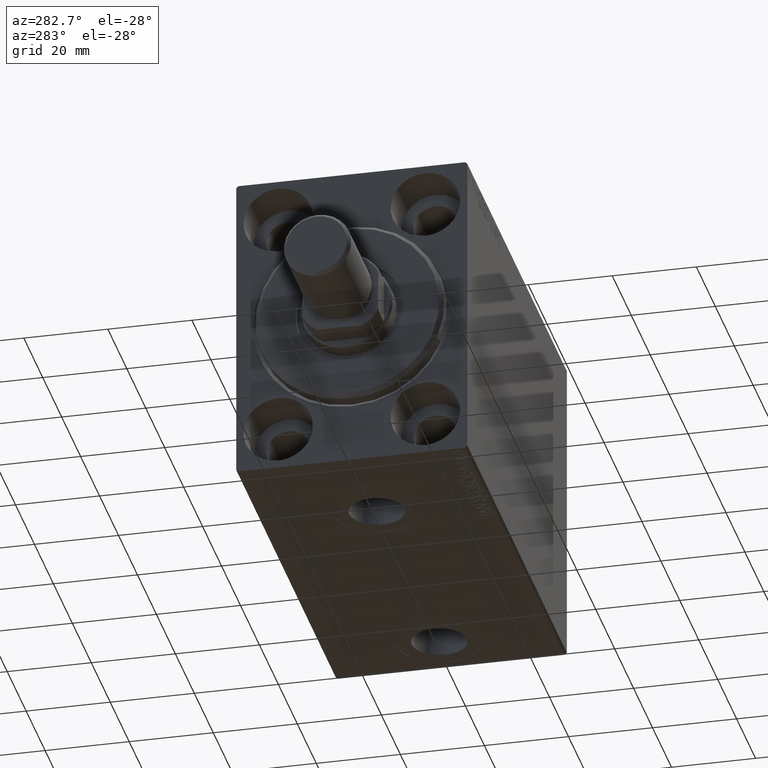
[diagram: clean part render]
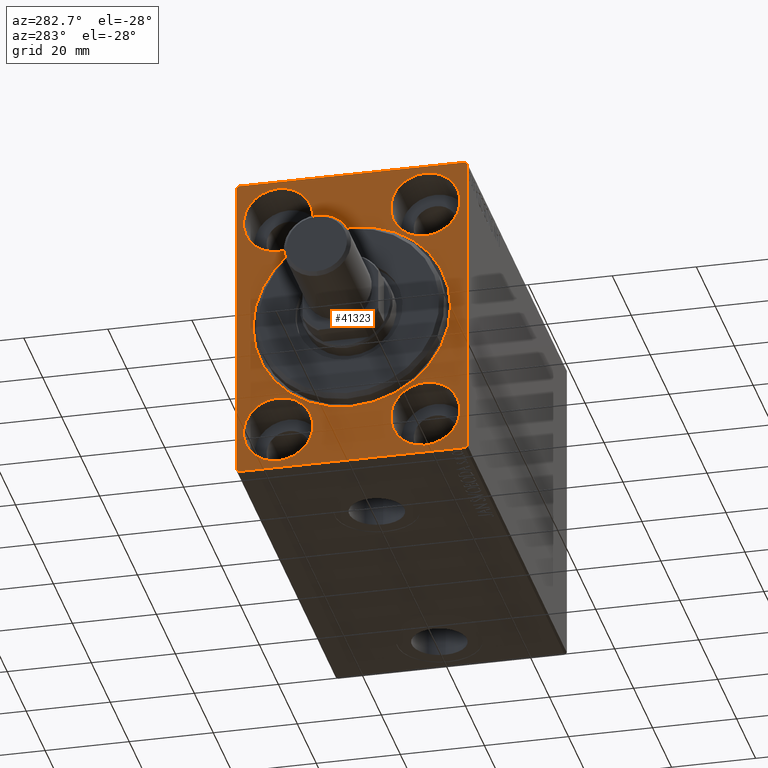
[diagram: same view with one face highlighted and labeled with its STEP entity id]
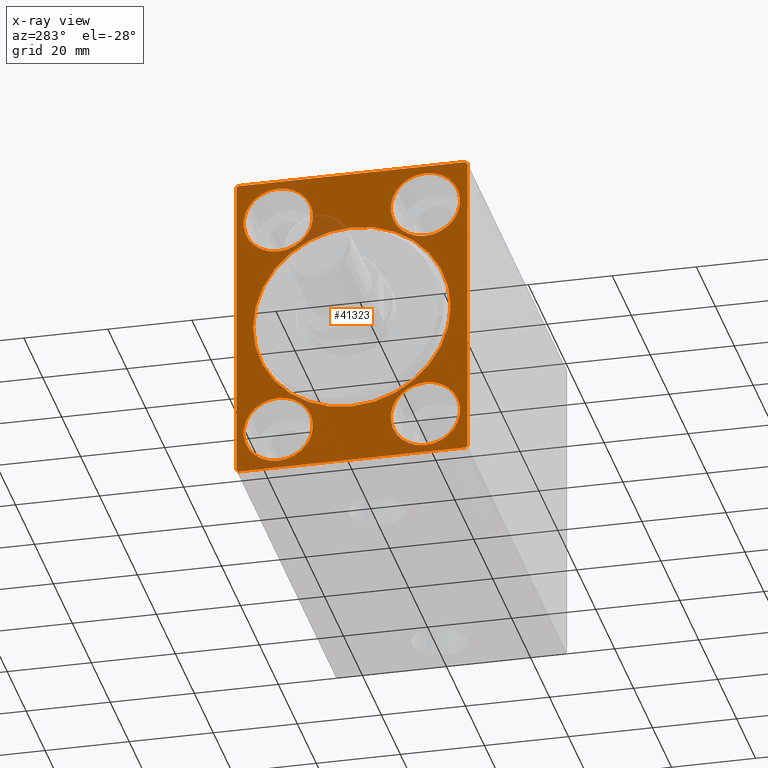
[diagram: x-ray of the same camera — body ghosted, the highlighted face saturated]
A machine part, auxiliary view. The second image highlights one B-rep face of the part: STEP entity #41323.
The next image is the same camera in x-ray: the body ghosted, the highlighted face saturated — about 3% of this face is hidden behind the body in this view.
In plain terms, the highlighted planar face has unit normal (1, 0, 0).
Its self-contained STEP definition (entity closure, byte-faithful):
#209 = CARTESIAN_POINT ( 'NONE',  ( 0.000000000000000000, 17.50000000000000355, 19.25000000000000000 ) ) ;
#542 = ORIENTED_EDGE ( 'NONE', *, *, #19928, .T. ) ;
#1023 = VERTEX_POINT ( 'NONE', #7297 ) ;
#1029 = DIRECTION ( 'NONE',  ( 0.000000000000000000, 0.000000000000000000, -1.000000000000000000 ) ) ;
#1526 = CIRCLE ( 'NONE', #39529, 8.250000000000000000 ) ;
#1567 = FACE_BOUND ( 'NONE', #27237, .T. ) ;
#1699 = CARTESIAN_POINT ( 'NONE',  ( 0.000000000000000000, 26.99999999999998934, -37.50000000000000000 ) ) ;
#1703 = EDGE_CURVE ( 'NONE', #31374, #20056, #21033, .T. ) ;
#2851 = ORIENTED_EDGE ( 'NONE', *, *, #42606, .F. ) ;
#2890 = CARTESIAN_POINT ( 'NONE',  ( 0.000000000000000000, 27.49999999999999645, 37.00000000000001421 ) ) ;
#3001 = CARTESIAN_POINT ( 'NONE',  ( 0.000000000000000000, -17.50000000000000355, -27.50000000000000355 ) ) ;
#3006 = CARTESIAN_POINT ( 'NONE',  ( 0.000000000000000000, 17.50000000000000355, 35.74999999999999289 ) ) ;
#3254 = DIRECTION ( 'NONE',  ( 0.000000000000000000, 0.000000000000000000, 1.000000000000000000 ) ) ;
#3624 = CARTESIAN_POINT ( 'NONE',  ( 0.000000000000000000, -27.00000000000001776, -37.50000000000000000 ) ) ;
#3910 = VERTEX_POINT ( 'NONE', #9694 ) ;
#4159 = DIRECTION ( 'NONE',  ( -1.000000000000000000, 0.000000000000000000, 0.000000000000000000 ) ) ;
#4167 = CARTESIAN_POINT ( 'NONE',  ( 0.000000000000000000, 27.49999999999999645, 37.50000000000000711 ) ) ;
#4375 = VERTEX_POINT ( 'NONE', #19719 ) ;
#4897 = CIRCLE ( 'NONE', #42919, 8.249999999999992895 ) ;
#4964 = AXIS2_PLACEMENT_3D ( 'NONE', #14630, #18457, #15074 ) ;
#5509 = ORIENTED_EDGE ( 'NONE', *, *, #8668, .F. ) ;
#6898 = ORIENTED_EDGE ( 'NONE', *, *, #20541, .F. ) ;
#6967 = ORIENTED_EDGE ( 'NONE', *, *, #16900, .T. ) ;
#7055 = CARTESIAN_POINT ( 'NONE',  ( 0.000000000000000000, 17.49999999999999645, -19.25000000000000355 ) ) ;
#7297 = CARTESIAN_POINT ( 'NONE',  ( 0.000000000000000000, 0.000000000000000000, 23.50000000000001776 ) ) ;
#7353 = CARTESIAN_POINT ( 'NONE',  ( 0.000000000000000000, -27.50000000000000355, 37.00000000000000000 ) ) ;
#7979 = AXIS2_PLACEMENT_3D ( 'NONE', #14539, #18357, #1029 ) ;
#8501 = ORIENTED_EDGE ( 'NONE', *, *, #1703, .F. ) ;
#8668 = EDGE_CURVE ( 'NONE', #15597, #4375, #14895, .T. ) ;
#9221 = CARTESIAN_POINT ( 'NONE',  ( 0.000000000000000000, -27.00000000000000355, 37.50000000000000000 ) ) ;
#9694 = CARTESIAN_POINT ( 'NONE',  ( 0.000000000000000000, 2.877919977996282293E-15, -23.50000000000001776 ) ) ;
#9858 = CARTESIAN_POINT ( 'NONE',  ( 0.000000000000000000, 17.49999999999999645, -35.75000000000000711 ) ) ;
#10197 = VECTOR ( 'NONE', #23009, 1000.000000000000000 ) ;
#10802 = CARTESIAN_POINT ( 'NONE',  ( 0.000000000000000000, 17.50000000000000355, 27.49999999999999645 ) ) ;
#10906 = DIRECTION ( 'NONE',  ( 0.000000000000000000, 0.000000000000000000, -1.000000000000000000 ) ) ;
#11452 = LINE ( 'NONE', #28951, #17376 ) ;
#11540 = EDGE_CURVE ( 'NONE', #23853, #40978, #33865, .T. ) ;
#11915 = FACE_BOUND ( 'NONE', #40598, .T. ) ;
#11938 = VERTEX_POINT ( 'NONE', #14418 ) ;
#12124 = DIRECTION ( 'NONE',  ( -1.000000000000000000, 0.000000000000000000, 0.000000000000000000 ) ) ;
#12143 = PLANE ( 'NONE',  #4964 ) ;
#12199 = CARTESIAN_POINT ( 'NONE',  ( 0.000000000000000000, -17.50000000000000355, -35.75000000000000711 ) ) ;
#12455 = CARTESIAN_POINT ( 'NONE',  ( 0.000000000000000000, -27.00000000000001776, -37.50000000000000000 ) ) ;
#12758 = EDGE_LOOP ( 'NONE', ( #38115, #12971 ) ) ;
#12971 = ORIENTED_EDGE ( 'NONE', *, *, #39194, .T. ) ;
#13052 = AXIS2_PLACEMENT_3D ( 'NONE', #3001, #43655, #26594 ) ;
#13342 = DIRECTION ( 'NONE',  ( 0.000000000000000000, 0.000000000000000000, 1.000000000000000000 ) ) ;
#13727 = DIRECTION ( 'NONE',  ( 0.000000000000000000, 0.000000000000000000, 1.000000000000000000 ) ) ;
#14106 = VECTOR ( 'NONE', #25871, 1000.000000000000000 ) ;
#14274 = CARTESIAN_POINT ( 'NONE',  ( 0.000000000000000000, 27.50000000000000355, -36.99999999999998579 ) ) ;
#14418 = CARTESIAN_POINT ( 'NONE',  ( 0.000000000000000000, 27.50000000000000355, -36.99999999999998579 ) ) ;
#14445 = DIRECTION ( 'NONE',  ( 0.000000000000000000, 0.000000000000000000, 1.000000000000000000 ) ) ;
#14539 = CARTESIAN_POINT ( 'NONE',  ( 0.000000000000000000, 0.000000000000000000, 0.000000000000000000 ) ) ;
#14544 = DIRECTION ( 'NONE',  ( -0.000000000000000000, 0.7071067811865524577, -0.7071067811865426878 ) ) ;
#14630 = CARTESIAN_POINT ( 'NONE',  ( 0.000000000000000000, 0.000000000000000000, 0.000000000000000000 ) ) ;
#14760 = CARTESIAN_POINT ( 'NONE',  ( 0.000000000000000000, 26.99999999999999645, 37.50000000000000711 ) ) ;
#14766 = EDGE_CURVE ( 'NONE', #1023, #3910, #18046, .T. ) ;
#14809 = ORIENTED_EDGE ( 'NONE', *, *, #38778, .F. ) ;
#14857 = FACE_BOUND ( 'NONE', #12758, .T. ) ;
#14895 = LINE ( 'NONE', #22076, #14106 ) ;
#15074 = DIRECTION ( 'NONE',  ( 0.000000000000000000, 0.000000000000000000, -1.000000000000000000 ) ) ;
#15216 = EDGE_CURVE ( 'NONE', #40978, #23853, #1526, .T. ) ;
#15597 = VERTEX_POINT ( 'NONE', #7353 ) ;
#15841 = CARTESIAN_POINT ( 'NONE',  ( 0.000000000000000000, -17.49999999999999645, 27.49999999999999645 ) ) ;
#16072 = EDGE_CURVE ( 'NONE', #40716, #29606, #36710, .T. ) ;
#16146 = EDGE_CURVE ( 'NONE', #11938, #33803, #11452, .T. ) ;
#16267 = EDGE_CURVE ( 'NONE', #19022, #23595, #23796, .T. ) ;
#16409 = CARTESIAN_POINT ( 'NONE',  ( 0.000000000000000000, -17.50000000000000355, -27.50000000000000355 ) ) ;
#16489 = AXIS2_PLACEMENT_3D ( 'NONE', #15841, #23007, #13342 ) ;
#16900 = EDGE_CURVE ( 'NONE', #21012, #4375, #36699, .T. ) ;
#16953 = LINE ( 'NONE', #44323, #31130 ) ;
#17376 = VECTOR ( 'NONE', #24937, 1000.000000000000000 ) ;
#17622 = VECTOR ( 'NONE', #37866, 1000.000000000000000 ) ;
#18046 = CIRCLE ( 'NONE', #7979, 23.50000000000001776 ) ;
#18357 = DIRECTION ( 'NONE',  ( 1.000000000000000000, 0.000000000000000000, 0.000000000000000000 ) ) ;
#18457 = DIRECTION ( 'NONE',  ( 1.000000000000000000, 0.000000000000000000, 0.000000000000000000 ) ) ;
#18806 = AXIS2_PLACEMENT_3D ( 'NONE', #10802, #34830, #13727 ) ;
#19022 = VERTEX_POINT ( 'NONE', #39320 ) ;
#19672 = EDGE_LOOP ( 'NONE', ( #37761, #2851 ) ) ;
#19713 = ORIENTED_EDGE ( 'NONE', *, *, #16072, .F. ) ;
#19719 = CARTESIAN_POINT ( 'NONE',  ( 0.000000000000000000, -27.50000000000000355, -37.00000000000000000 ) ) ;
#19928 = EDGE_CURVE ( 'NONE', #11938, #20672, #41656, .T. ) ;
#20056 = VERTEX_POINT ( 'NONE', #9221 ) ;
#20123 = EDGE_LOOP ( 'NONE', ( #5509, #28110, #8501, #26023, #22004, #542, #23863, #6967 ) ) ;
#20541 = EDGE_CURVE ( 'NONE', #26510, #33806, #41137, .T. ) ;
#20553 = LINE ( 'NONE', #41648, #39808 ) ;
#20635 = EDGE_CURVE ( 'NONE', #31374, #33803, #25088, .T. ) ;
#20672 = VERTEX_POINT ( 'NONE', #1699 ) ;
#21012 = VERTEX_POINT ( 'NONE', #3624 ) ;
#21033 = LINE ( 'NONE', #4167, #17622 ) ;
#21085 = AXIS2_PLACEMENT_3D ( 'NONE', #34755, #27124, #40821 ) ;
#21988 = EDGE_LOOP ( 'NONE', ( #6898, #29584 ) ) ;
#22004 = ORIENTED_EDGE ( 'NONE', *, *, #16146, .F. ) ;
#22076 = CARTESIAN_POINT ( 'NONE',  ( 0.000000000000000000, -27.50000000000000355, 37.50000000000000000 ) ) ;
#22228 = EDGE_CURVE ( 'NONE', #15597, #20056, #16953, .T. ) ;
#23007 = DIRECTION ( 'NONE',  ( -1.000000000000000000, 0.000000000000000000, 0.000000000000000000 ) ) ;
#23009 = DIRECTION ( 'NONE',  ( -0.000000000000000000, -0.7071067811865378028, 0.7071067811865573427 ) ) ;
#23236 = CARTESIAN_POINT ( 'NONE',  ( 0.000000000000000000, -17.50000000000000355, -19.25000000000000355 ) ) ;
#23595 = VERTEX_POINT ( 'NONE', #28270 ) ;
#23796 = CIRCLE ( 'NONE', #42440, 8.249999999999992895 ) ;
#23853 = VERTEX_POINT ( 'NONE', #23236 ) ;
#23863 = ORIENTED_EDGE ( 'NONE', *, *, #24777, .F. ) ;
#24008 = DIRECTION ( 'NONE',  ( 0.000000000000000000, 0.000000000000000000, 1.000000000000000000 ) ) ;
#24777 = EDGE_CURVE ( 'NONE', #21012, #20672, #20553, .T. ) ;
#24937 = DIRECTION ( 'NONE',  ( 0.000000000000000000, -9.251858538542970348E-17, 1.000000000000000000 ) ) ;
#25011 = AXIS2_PLACEMENT_3D ( 'NONE', #27974, #28191, #10906 ) ;
#25088 = LINE ( 'NONE', #14760, #35395 ) ;
#25871 = DIRECTION ( 'NONE',  ( 0.000000000000000000, 0.000000000000000000, -1.000000000000000000 ) ) ;
#26023 = ORIENTED_EDGE ( 'NONE', *, *, #20635, .T. ) ;
#26031 = CARTESIAN_POINT ( 'NONE',  ( 0.000000000000000000, -17.49999999999999645, 27.49999999999999645 ) ) ;
#26477 = DIRECTION ( 'NONE',  ( 0.000000000000000000, 0.000000000000000000, 1.000000000000000000 ) ) ;
#26510 = VERTEX_POINT ( 'NONE', #7055 ) ;
#26594 = DIRECTION ( 'NONE',  ( 0.000000000000000000, 0.000000000000000000, 1.000000000000000000 ) ) ;
#27124 = DIRECTION ( 'NONE',  ( -1.000000000000000000, 0.000000000000000000, 0.000000000000000000 ) ) ;
#27237 = EDGE_LOOP ( 'NONE', ( #32469, #40590 ) ) ;
#27974 = CARTESIAN_POINT ( 'NONE',  ( 0.000000000000000000, 0.000000000000000000, 0.000000000000000000 ) ) ;
#28110 = ORIENTED_EDGE ( 'NONE', *, *, #22228, .T. ) ;
#28191 = DIRECTION ( 'NONE',  ( 1.000000000000000000, 0.000000000000000000, 0.000000000000000000 ) ) ;
#28270 = CARTESIAN_POINT ( 'NONE',  ( 0.000000000000000000, -17.49999999999999645, 19.25000000000000000 ) ) ;
#28547 = FACE_OUTER_BOUND ( 'NONE', #20123, .T. ) ;
#28951 = CARTESIAN_POINT ( 'NONE',  ( 0.000000000000000000, 27.50000000000000355, -37.50000000000000000 ) ) ;
#29238 = CARTESIAN_POINT ( 'NONE',  ( 0.000000000000000000, 26.99999999999999645, 37.50000000000000711 ) ) ;
#29584 = ORIENTED_EDGE ( 'NONE', *, *, #30118, .F. ) ;
#29606 = VERTEX_POINT ( 'NONE', #209 ) ;
#30118 = EDGE_CURVE ( 'NONE', #33806, #26510, #43488, .T. ) ;
#31109 = CARTESIAN_POINT ( 'NONE',  ( 0.000000000000000000, 17.49999999999999645, -27.50000000000000355 ) ) ;
#31130 = VECTOR ( 'NONE', #37821, 1000.000000000000114 ) ;
#31221 = AXIS2_PLACEMENT_3D ( 'NONE', #31109, #4159, #3254 ) ;
#31374 = VERTEX_POINT ( 'NONE', #29238 ) ;
#31552 = CIRCLE ( 'NONE', #16489, 8.249999999999992895 ) ;
#32469 = ORIENTED_EDGE ( 'NONE', *, *, #11540, .F. ) ;
#32569 = FACE_BOUND ( 'NONE', #21988, .T. ) ;
#33456 = DIRECTION ( 'NONE',  ( -1.000000000000000000, 0.000000000000000000, 0.000000000000000000 ) ) ;
#33803 = VERTEX_POINT ( 'NONE', #2890 ) ;
#33806 = VERTEX_POINT ( 'NONE', #9858 ) ;
#33865 = CIRCLE ( 'NONE', #13052, 8.250000000000000000 ) ;
#34755 = CARTESIAN_POINT ( 'NONE',  ( 0.000000000000000000, 17.49999999999999645, -27.50000000000000355 ) ) ;
#34830 = DIRECTION ( 'NONE',  ( -1.000000000000000000, 0.000000000000000000, 0.000000000000000000 ) ) ;
#34915 = DIRECTION ( 'NONE',  ( 0.000000000000000000, 1.000000000000000000, 0.000000000000000000 ) ) ;
#35367 = VECTOR ( 'NONE', #41872, 1000.000000000000114 ) ;
#35395 = VECTOR ( 'NONE', #14544, 1000.000000000000000 ) ;
#35747 = CIRCLE ( 'NONE', #25011, 23.50000000000001776 ) ;
#36699 = LINE ( 'NONE', #12455, #10197 ) ;
#36710 = CIRCLE ( 'NONE', #18806, 8.249999999999992895 ) ;
#37761 = ORIENTED_EDGE ( 'NONE', *, *, #16267, .F. ) ;
#37821 = DIRECTION ( 'NONE',  ( -0.000000000000000000, 0.7071067811865474617, 0.7071067811865474617 ) ) ;
#37866 = DIRECTION ( 'NONE',  ( 0.000000000000000000, -1.000000000000000000, -1.261617073437677999E-16 ) ) ;
#38019 = CARTESIAN_POINT ( 'NONE',  ( 0.000000000000000000, 17.50000000000000355, 27.49999999999999645 ) ) ;
#38115 = ORIENTED_EDGE ( 'NONE', *, *, #14766, .T. ) ;
#38778 = EDGE_CURVE ( 'NONE', #29606, #40716, #4897, .T. ) ;
#39194 = EDGE_CURVE ( 'NONE', #3910, #1023, #35747, .T. ) ;
#39309 = FACE_BOUND ( 'NONE', #19672, .T. ) ;
#39320 = CARTESIAN_POINT ( 'NONE',  ( 0.000000000000000000, -17.49999999999999645, 35.74999999999999289 ) ) ;
#39529 = AXIS2_PLACEMENT_3D ( 'NONE', #16409, #33456, #24008 ) ;
#39808 = VECTOR ( 'NONE', #34915, 1000.000000000000000 ) ;
#40590 = ORIENTED_EDGE ( 'NONE', *, *, #15216, .F. ) ;
#40598 = EDGE_LOOP ( 'NONE', ( #19713, #14809 ) ) ;
#40716 = VERTEX_POINT ( 'NONE', #3006 ) ;
#40821 = DIRECTION ( 'NONE',  ( 0.000000000000000000, 0.000000000000000000, 1.000000000000000000 ) ) ;
#40978 = VERTEX_POINT ( 'NONE', #12199 ) ;
#41137 = CIRCLE ( 'NONE', #21085, 8.250000000000000000 ) ;
#41323 = ADVANCED_FACE ( 'NONE', ( #14857, #32569, #39309, #11915, #1567, #28547 ), #12143, .F. ) ;
#41612 = DIRECTION ( 'NONE',  ( -1.000000000000000000, 0.000000000000000000, 0.000000000000000000 ) ) ;
#41648 = CARTESIAN_POINT ( 'NONE',  ( 0.000000000000000000, -27.50000000000000355, -37.50000000000000000 ) ) ;
#41656 = LINE ( 'NONE', #14274, #35367 ) ;
#41872 = DIRECTION ( 'NONE',  ( 0.000000000000000000, -0.7071067811865474617, -0.7071067811865474617 ) ) ;
#42440 = AXIS2_PLACEMENT_3D ( 'NONE', #26031, #12124, #26477 ) ;
#42606 = EDGE_CURVE ( 'NONE', #23595, #19022, #31552, .T. ) ;
#42919 = AXIS2_PLACEMENT_3D ( 'NONE', #38019, #41612, #14445 ) ;
#43488 = CIRCLE ( 'NONE', #31221, 8.250000000000000000 ) ;
#43655 = DIRECTION ( 'NONE',  ( -1.000000000000000000, 0.000000000000000000, 0.000000000000000000 ) ) ;
#44323 = CARTESIAN_POINT ( 'NONE',  ( 0.000000000000000000, -27.50000000000000355, 37.00000000000000000 ) ) ;